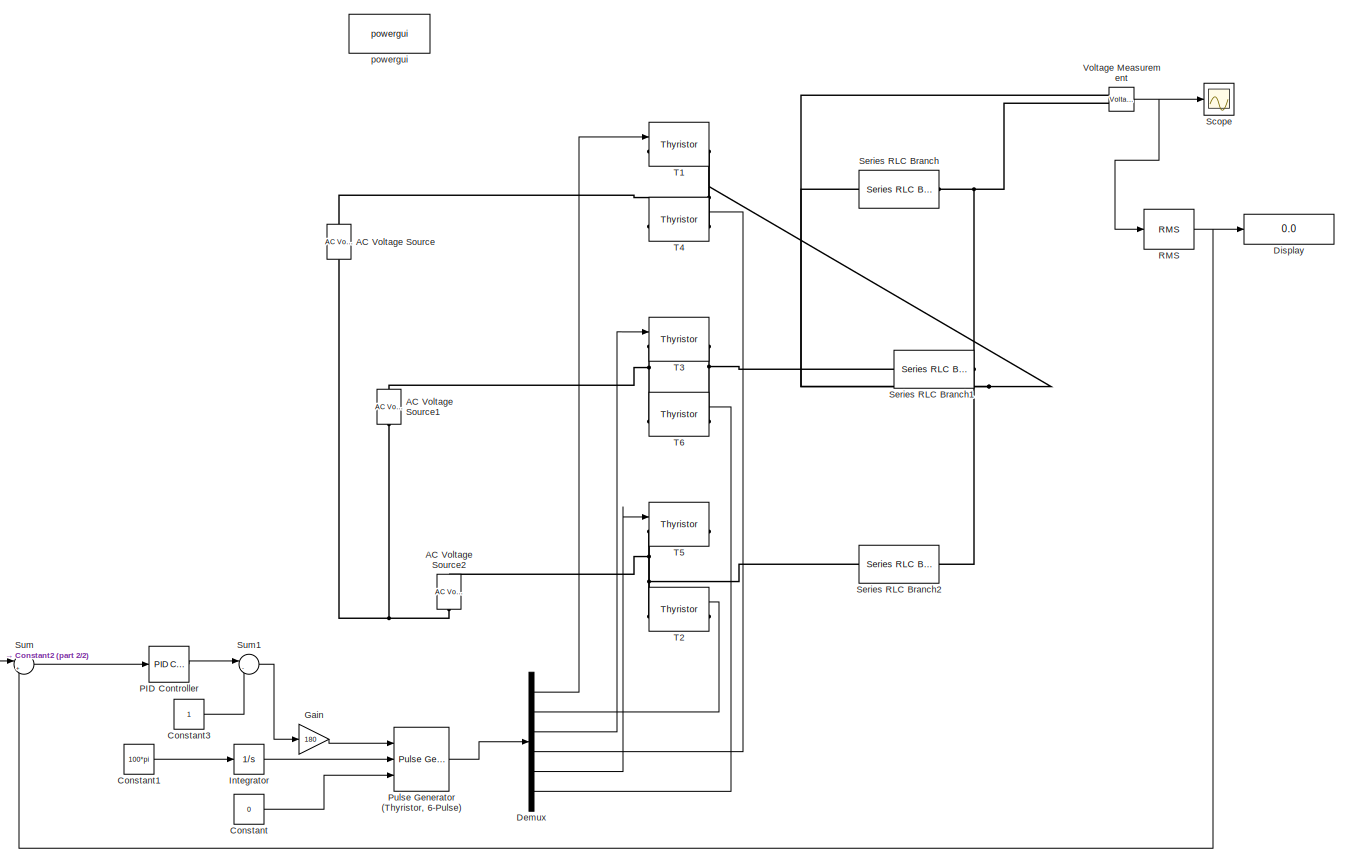
[diagram: root canvas - part 1/2, most of the canvas]
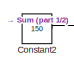
[diagram: root canvas - part 2/2, bottom left region]
MODEL slx_2f260f8456dd
KIND model
CONFIG AbsTol = auto
CONFIG EnableMultiTasking = off
CONFIG FixedStep = auto
CONFIG MaxStep = 1e-4
CONFIG MinStep = auto
CONFIG RelTol = 1e-3
CONFIG SampleTimeConstraint = Unconstrained
CONFIG SolverName = ode23tb
CONFIG StartTime = 0.0
CONFIG StopTime = 0.1
BLOCK [Reference] AC Voltage Source  REF=spsACVoltageSourceLib/AC Voltage Source
  Ports = [0, 0, 0, 0, 0, 1, 1]
  SourceBlock = spsACVoltageSourceLib/AC Voltage Source
  SourceProductBaseCode = PS
  SourceType = AC Voltage Source
BLOCK [Reference] AC Voltage Source1  REF=spsACVoltageSourceLib/AC Voltage Source
  Ports = [0, 0, 0, 0, 0, 1, 1]
  SourceBlock = spsACVoltageSourceLib/AC Voltage Source
  SourceProductBaseCode = PS
  SourceType = AC Voltage Source
BLOCK [Reference] AC Voltage Source2  REF=spsACVoltageSourceLib/AC Voltage Source
  Ports = [0, 0, 0, 0, 0, 1, 1]
  SourceBlock = spsACVoltageSourceLib/AC Voltage Source
  SourceProductBaseCode = PS
  SourceType = AC Voltage Source
BLOCK [Constant] Constant
  Value = 0
BLOCK [Constant] Constant1
  Value = 100*pi
BLOCK [Constant] Constant2
  Value = 150
BLOCK [Constant] Constant3
BLOCK [Demux] Demux
  Outputs = 6
  Ports = [1, 6]
BLOCK [Display] Display
  Decimation = 1
  Ports = [1]
BLOCK [Gain] Gain
  Gain = 180
BLOCK [Integrator] Integrator
  Ports = [1, 1]
BLOCK [Reference] PID Controller  REF=pid_lib/PID Controller
  Ports = [1, 1]
  SourceBlock = pid_lib/PID Controller
  SourceProductBaseCode = SL
  SourceType = PID 1dof
BLOCK [Reference] Pulse Generator (Thyristor, 6-Pulse)  REF=spsPulseGeneratorThyristor6PulseLib/Pulse Generator
(Thyristor, 6-Pulse)
  Ports = [3, 1]
  SourceBlock = spsPulseGeneratorThyristor6PulseLib/Pulse Generator\n(Thyristor, 6-Pulse)
  SourceProductBaseCode = PS
  SourceType = Pulse Generator (Thyristor)
BLOCK [Reference] RMS  REF=spsRMSLib/RMS
  Ports = [1, 1]
  SourceBlock = spsRMSLib/RMS
  SourceProductBaseCode = PS
  SourceType = RMS
BLOCK [Scope] Scope
  Floating = off
  NumInputPorts = 1
  Ports = [1]
  ScopeSpecificationString = Simulink.scopes.TimeScopeBlockCfg('CurrentConfiguration', extmgr.ConfigurationSet(extmgr.Configuration('Core','General UI',true),extmgr.Configuration('Core','Source UI',true),extmgr.Configuration('Sources','WiredSimulink',true),extmgr.Configuration('Visuals','Time Domain',true,'SerializedDisplays',{struct('MinYLimReal','-98.92335','MaxYLimReal','98.92335','YLabelReal','','MinYLimMag','0.00000','Ma...<+1451ch>
BLOCK [Reference] Series RLC Branch  REF=spsSeriesRLCBranchLib/Series RLC Branch
  Ports = [0, 0, 0, 0, 0, 1, 1]
  SourceBlock = spsSeriesRLCBranchLib/Series RLC Branch
  SourceProductBaseCode = PS
  SourceType = Series RLC Branch
BLOCK [Reference] Series RLC Branch1  REF=spsSeriesRLCBranchLib/Series RLC Branch
  Ports = [0, 0, 0, 0, 0, 1, 1]
  SourceBlock = spsSeriesRLCBranchLib/Series RLC Branch
  SourceProductBaseCode = PS
  SourceType = Series RLC Branch
BLOCK [Reference] Series RLC Branch2  REF=spsSeriesRLCBranchLib/Series RLC Branch
  Ports = [0, 0, 0, 0, 0, 1, 1]
  SourceBlock = spsSeriesRLCBranchLib/Series RLC Branch
  SourceProductBaseCode = PS
  SourceType = Series RLC Branch
BLOCK [Sum] Sum
  Inputs = |+-
  Ports = [2, 1]
BLOCK [Sum] Sum1
  Inputs = |-+
  Ports = [2, 1]
BLOCK [Reference] T1  REF=spsThyristorLib/Thyristor
  NameLocation = top
  Ports = [1, 1, 0, 0, 0, 1, 1]
  SourceBlock = spsThyristorLib/Thyristor
  SourceProductBaseCode = PS
  SourceType = Thyristor
BLOCK [Reference] T2  REF=spsThyristorLib/Thyristor
  NameLocation = top
  Ports = [1, 1, 0, 0, 0, 1, 1]
  SourceBlock = spsThyristorLib/Thyristor
  SourceProductBaseCode = PS
  SourceType = Thyristor
BLOCK [Reference] T3  REF=spsThyristorLib/Thyristor
  NameLocation = top
  Ports = [1, 1, 0, 0, 0, 1, 1]
  SourceBlock = spsThyristorLib/Thyristor
  SourceProductBaseCode = PS
  SourceType = Thyristor
BLOCK [Reference] T4  REF=spsThyristorLib/Thyristor
  NameLocation = top
  Ports = [1, 1, 0, 0, 0, 1, 1]
  SourceBlock = spsThyristorLib/Thyristor
  SourceProductBaseCode = PS
  SourceType = Thyristor
BLOCK [Reference] T5  REF=spsThyristorLib/Thyristor
  NameLocation = top
  Ports = [1, 1, 0, 0, 0, 1, 1]
  SourceBlock = spsThyristorLib/Thyristor
  SourceProductBaseCode = PS
  SourceType = Thyristor
BLOCK [Reference] T6  REF=spsThyristorLib/Thyristor
  NameLocation = top
  Ports = [1, 1, 0, 0, 0, 1, 1]
  SourceBlock = spsThyristorLib/Thyristor
  SourceProductBaseCode = PS
  SourceType = Thyristor
BLOCK [Reference] Voltage Measurement  REF=spsVoltageMeasurementLib/Voltage Measurement
  Ports = [0, 1, 0, 0, 0, 2]
  SourceBlock = spsVoltageMeasurementLib/Voltage Measurement
  SourceProductBaseCode = PS
  SourceType = Voltage Measurement
  UserDataPersistent = on
BLOCK [Reference] powergui  REF=spspowerguiLib/powergui
  Ports = []
  Priority = 1
  SourceBlock = spspowerguiLib/powergui
  SourceProductBaseCode = PS
  SourceType = PSB option menu block
LINE Constant1:1 -> Integrator:1
LINE Constant2:1 -> Sum:1
LINE Constant3:1 -> Sum1:2
LINE Constant:1 -> Pulse Generator (Thyristor, 6-Pulse):3
LINE Demux:1 -> T1:1
LINE Demux:2 -> T2:1
LINE Demux:3 -> T3:1
LINE Demux:4 -> T4:1
LINE Demux:5 -> T5:1
LINE Demux:6 -> T6:1
LINE Gain:1 -> Pulse Generator (Thyristor, 6-Pulse):1
LINE Integrator:1 -> Pulse Generator (Thyristor, 6-Pulse):2
LINE PID Controller:1 -> Sum1:1
LINE Pulse Generator (Thyristor, 6-Pulse):1 -> Demux:1
NET RMS:1 -> Display:1, Sum:2
LINE Sum1:1 -> Gain:1
LINE Sum:1 -> PID Controller:1
NET Voltage Measurement:1 -> RMS:1, Scope:1
PNET net1: AC Voltage Source1:LConn1 -- AC Voltage Source2:LConn1 -- AC Voltage Source:LConn1
PNET net2: AC Voltage Source1:RConn1 -- T3:LConn1 -- T6:RConn1
PNET net3: AC Voltage Source2:RConn1 -- T2:RConn1 -- T5:LConn1
PNET net4: AC Voltage Source:RConn1 -- T1:LConn1 -- T4:RConn1
PNET net5: Series RLC Branch1:LConn1 -- T3:RConn1 -- T6:LConn1
PNET net6: Series RLC Branch1:RConn1 -- Series RLC Branch2:RConn1 -- Series RLC Branch:RConn1 -- Voltage Measurement:LConn2
PNET net7: Series RLC Branch2:LConn1 -- T2:LConn1 -- T5:RConn1
PNET net8: Series RLC Branch:LConn1 -- T1:RConn1 -- T4:LConn1 -- Voltage Measurement:LConn1
note: NET lines group one-source signal fan-out (src -> all destinations, sorted); 1:1 wires keep LINE; PNET lines group multi-terminal physical nets as a canonical sorted terminal list (undirected conserving connections); 2-terminal nets keep the pairwise PLINE form
